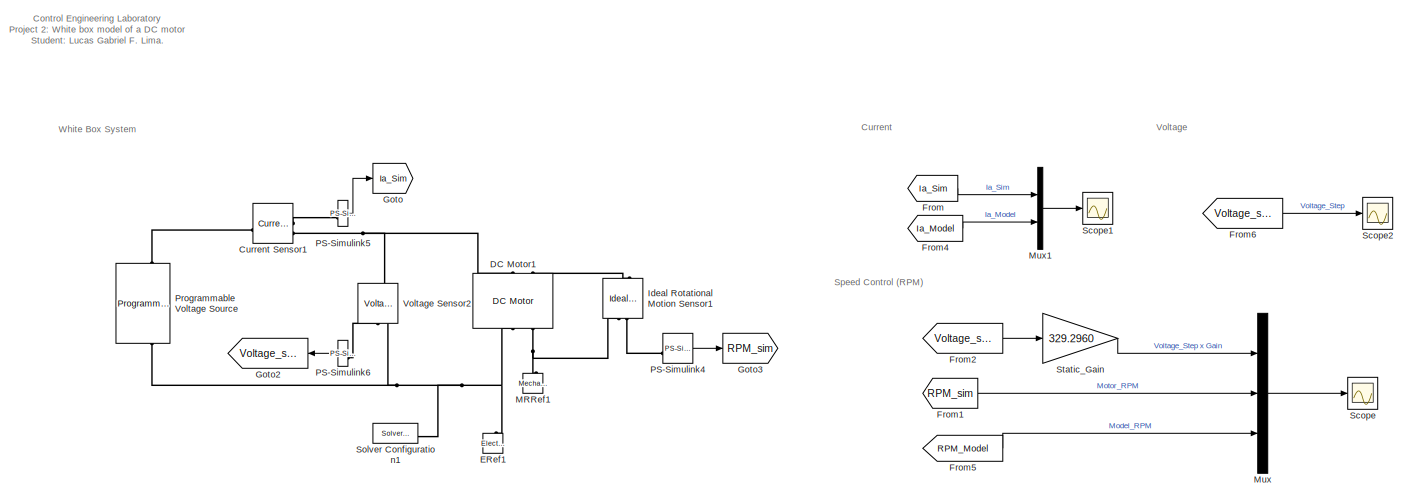
[diagram: root canvas - part 1/2, full width, top band]
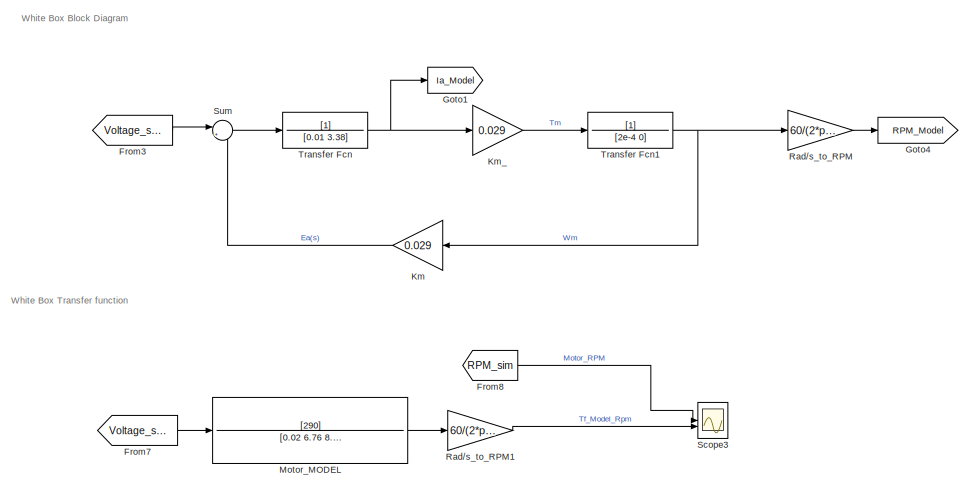
[diagram: root canvas - part 2/2, bottom center region]
MODEL slx_99c17fdb7ea1
KIND model
CONFIG AbsTol = auto
CONFIG EnableMultiTasking = off
CONFIG FixedStep = auto
CONFIG MaxStep = auto
CONFIG MinStep = auto
CONFIG RelTol = 1e-3
CONFIG SampleTimeConstraint = Unconstrained
CONFIG SolverName = VariableStepAuto
CONFIG StartTime = 0.0
CONFIG StopTime = 10.0
BLOCK [Reference] Current Sensor1  REF=fl_lib/Electrical/Electrical Sensors/Current Sensor
  NameLocation = top
  SourceBlock = fl_lib/Electrical/Electrical Sensors/Current Sensor
  SourceType = Current Sensor
BLOCK [Reference] DC Motor1  REF=ee_lib/Electromechanical/Brushed Motors/DC Motor
  NameLocation = left
  SourceBlock = ee_lib/Electromechanical/Brushed Motors/DC Motor
  SourceType = DC Motor
BLOCK [Reference] ERef1  REF=fl_lib/Electrical/Electrical Elements/Electrical Reference
  NameLocation = left
  SourceBlock = fl_lib/Electrical/Electrical Elements/Electrical Reference
  SourceType = Electrical Reference
BLOCK [From] From
  GotoTag = Ia_Sim
BLOCK [From] From1
  GotoTag = RPM_sim
BLOCK [From] From2
  GotoTag = Voltage_step
  NameLocation = top
BLOCK [From] From3
  GotoTag = Voltage_step
  NameLocation = top
BLOCK [From] From4
  GotoTag = Ia_Model
BLOCK [From] From5
  GotoTag = RPM_Model
BLOCK [From] From6
  GotoTag = Voltage_step
  NameLocation = top
BLOCK [From] From7
  GotoTag = Voltage_step
  NameLocation = top
BLOCK [From] From8
  GotoTag = RPM_sim
BLOCK [Goto] Goto
  GotoTag = Ia_Sim
BLOCK [Goto] Goto1
  GotoTag = Ia_Model
BLOCK [Goto] Goto2
  GotoTag = Voltage_step
  NameLocation = top
BLOCK [Goto] Goto3
  GotoTag = RPM_sim
BLOCK [Goto] Goto4
  GotoTag = RPM_Model
BLOCK [Reference] Ideal Rotational Motion Sensor1  REF=fl_lib/Mechanical/Mechanical Sensors/Ideal Rotational
Motion Sensor
  NameLocation = right
  SourceBlock = fl_lib/Mechanical/Mechanical Sensors/Ideal Rotational\nMotion Sensor
  SourceType = Ideal Rotational\nMotion Sensor
BLOCK [Gain] Km
  Gain = 0.029
  NameLocation = top
BLOCK [Gain] Km_
  Gain = 0.029
BLOCK [Reference] MRRef1  REF=fl_lib/Mechanical/Rotational Elements/Mechanical
Rotational Reference
  NameLocation = right
  SourceBlock = fl_lib/Mechanical/Rotational Elements/Mechanical\nRotational Reference
  SourceType = Mechanical\nRotational Reference
BLOCK [TransferFcn] Motor_MODEL
  Denominator = [0.02 6.76 8.41]
  Numerator = [290]
BLOCK [Mux] Mux
  DisplayOption = bar
  Inputs = 3
BLOCK [Mux] Mux1
  DisplayOption = bar
  Inputs = 2
BLOCK [Reference] PS-Simulink4  REF=nesl_utility/PS-Simulink
Converter
  SourceBlock = nesl_utility/PS-Simulink\nConverter
  SourceType = PS-Simulink\nConverter
BLOCK [Reference] PS-Simulink5  REF=nesl_utility/PS-Simulink
Converter
  SourceBlock = nesl_utility/PS-Simulink\nConverter
  SourceType = PS-Simulink\nConverter
BLOCK [Reference] PS-Simulink6  REF=nesl_utility/PS-Simulink
Converter
  NameLocation = top
  SourceBlock = nesl_utility/PS-Simulink\nConverter
  SourceType = PS-Simulink\nConverter
BLOCK [Reference] Programmable Voltage Source  REF=ee_lib/Sources/Programmable Voltage
Source
  NameLocation = right
  SourceBlock = ee_lib/Sources/Programmable Voltage\nSource
  SourceType = Programmable Voltage\nSource
BLOCK [Gain] Rad//s_to_RPM
  Gain = 60/(2*pi)
BLOCK [Gain] Rad//s_to_RPM1
  Gain = 60/(2*pi)
BLOCK [Scope] Scope
  Floating = off
  NumInputPorts = 1
  ScopeSpecificationString = Simulink.scopes.TimeScopeBlockCfg('CurrentConfiguration', extmgr.ConfigurationSet(extmgr.Configuration('Core','General UI',true),extmgr.Configuration('Core','Source UI',true),extmgr.Configuration('Sources','WiredSimulink',true,'DataLoggingVariableName','ScopeData1'),extmgr.Configuration('Visuals','Time Domain',true,'SerializedDisplays',{struct('MinYLimReal','-41.162','MaxYLimReal','370.458','YLabe...<+1564ch>
BLOCK [Scope] Scope1
  Floating = off
  NumInputPorts = 1
  ScopeSpecificationString = Simulink.scopes.TimeScopeBlockCfg('CurrentConfiguration', extmgr.ConfigurationSet(extmgr.Configuration('Core','General UI',true),extmgr.Configuration('Core','Source UI',true),extmgr.Configuration('Sources','WiredSimulink',true),extmgr.Configuration('Visuals','Time Domain',true,'SerializedDisplays',{struct('MinYLimReal','-0.0368','MaxYLimReal','0.33121','YLabelReal','','MinYLimMag','0.00000','MaxYL...<+1588ch>
BLOCK [Scope] Scope2
  Floating = off
  NumInputPorts = 1
  ScopeSpecificationString = Simulink.scopes.TimeScopeBlockCfg('CurrentConfiguration', extmgr.ConfigurationSet(extmgr.Configuration('Core','General UI',true),extmgr.Configuration('Core','Source UI',true),extmgr.Configuration('Sources','WiredSimulink',true,'DataLoggingVariableName','ScopeData2'),extmgr.Configuration('Visuals','Time Domain',true,'SerializedDisplays',{struct('MinYLimReal','-0.125','MaxYLimReal','1.125','YLabelRe...<+1454ch>
BLOCK [Scope] Scope3
  Floating = off
  NumInputPorts = 2
  ScopeSpecificationString = Simulink.scopes.TimeScopeBlockCfg('CurrentConfiguration', extmgr.ConfigurationSet(extmgr.Configuration('Core','General UI',true),extmgr.Configuration('Core','Source UI',true),extmgr.Configuration('Sources','WiredSimulink',true,'DataLoggingVariableName','ScopeData3'),extmgr.Configuration('Visuals','Time Domain',true,'SerializedDisplays',{struct('MinYLimReal','-41.162','MaxYLimReal','370.458','YLabe...<+2274ch>
BLOCK [Reference] Solver Configuration1  REF=nesl_utility/Solver
Configuration
  SourceBlock = nesl_utility/Solver\nConfiguration
  SourceType = Solver\nConfiguration
BLOCK [Gain] Static_Gain
  Gain = 329.2960
BLOCK [Sum] Sum
  Inputs = |+-
BLOCK [TransferFcn] Transfer Fcn
  Denominator = [0.01 3.38]
BLOCK [TransferFcn] Transfer Fcn1
  Denominator = [2e-4 0]
BLOCK [Reference] Voltage Sensor2  REF=fl_lib/Electrical/Electrical Sensors/Voltage Sensor
  NameLocation = right
  SourceBlock = fl_lib/Electrical/Electrical Sensors/Voltage Sensor
  SourceType = Voltage Sensor
ANNOTATION (root): Control Engineering Laboratory Project 2: White box model of a DC motor Student: Lucas Gabriel F. Lima.
ANNOTATION (root): Current
ANNOTATION (root): Speed Control (RPM)
ANNOTATION (root): Voltage
ANNOTATION (root): White Box Block Diagram
ANNOTATION (root): White Box System
ANNOTATION (root): White Box Transfer function
LINE From1:1 -> Mux:2
LINE From2:1 -> Static_Gain:1
LINE From3:1 -> Sum:1
LINE From4:1 -> Mux1:2
LINE From5:1 -> Mux:3
LINE From6:1 -> Scope2:1
LINE From7:1 -> Motor_MODEL:1
LINE From8:1 -> Scope3:1
LINE From:1 -> Mux1:1
LINE Km:1 -> Sum:2
LINE Km_:1 -> Transfer Fcn1:1
LINE Motor_MODEL:1 -> Rad//s_to_RPM1:1
LINE Mux1:1 -> Scope1:1
LINE Mux:1 -> Scope:1
LINE PS-Simulink4:1 -> Goto3:1
LINE PS-Simulink5:1 -> Goto:1
LINE PS-Simulink6:1 -> Goto2:1
LINE Rad//s_to_RPM1:1 -> Scope3:2
LINE Rad//s_to_RPM:1 -> Goto4:1
LINE Static_Gain:1 -> Mux:1
LINE Sum:1 -> Transfer Fcn:1
NET Transfer Fcn1:1 -> Km:1, Rad//s_to_RPM:1
NET Transfer Fcn:1 -> Goto1:1, Km_:1
PLINE Current Sensor1:LConn1 -- Programmable Voltage Source:LConn1
PLINE Current Sensor1:RConn1 -- PS-Simulink5:LConn1
PNET net1: Current Sensor1:RConn2 -- DC Motor1:LConn1 -- Voltage Sensor2:LConn1
PLINE DC Motor1:LConn2 -- Ideal Rotational Motion Sensor1:LConn1
PNET net2: DC Motor1:RConn1 -- ERef1:LConn1 -- Programmable Voltage Source:RConn1 -- Solver Configuration1:RConn1 -- Voltage Sensor2:RConn2
PNET net3: DC Motor1:RConn2 -- Ideal Rotational Motion Sensor1:RConn1 -- MRRef1:LConn1
PLINE Ideal Rotational Motion Sensor1:RConn2 -- PS-Simulink4:LConn1
PLINE PS-Simulink6:LConn1 -- Voltage Sensor2:RConn1
note: NET lines group one-source signal fan-out (src -> all destinations, sorted); 1:1 wires keep LINE; PNET lines group multi-terminal physical nets as a canonical sorted terminal list (undirected conserving connections); 2-terminal nets keep the pairwise PLINE form
